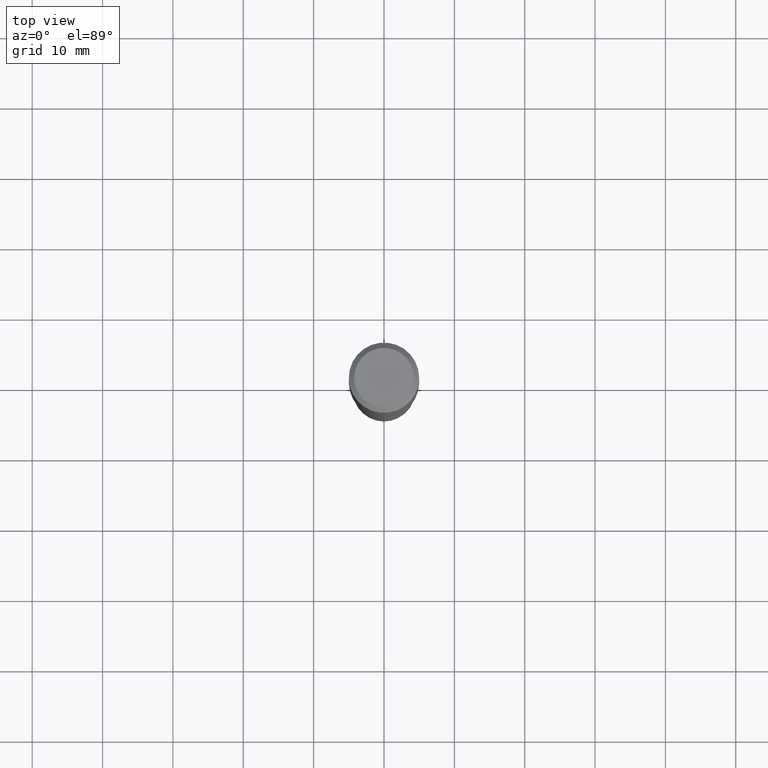
[diagram: clean part render]
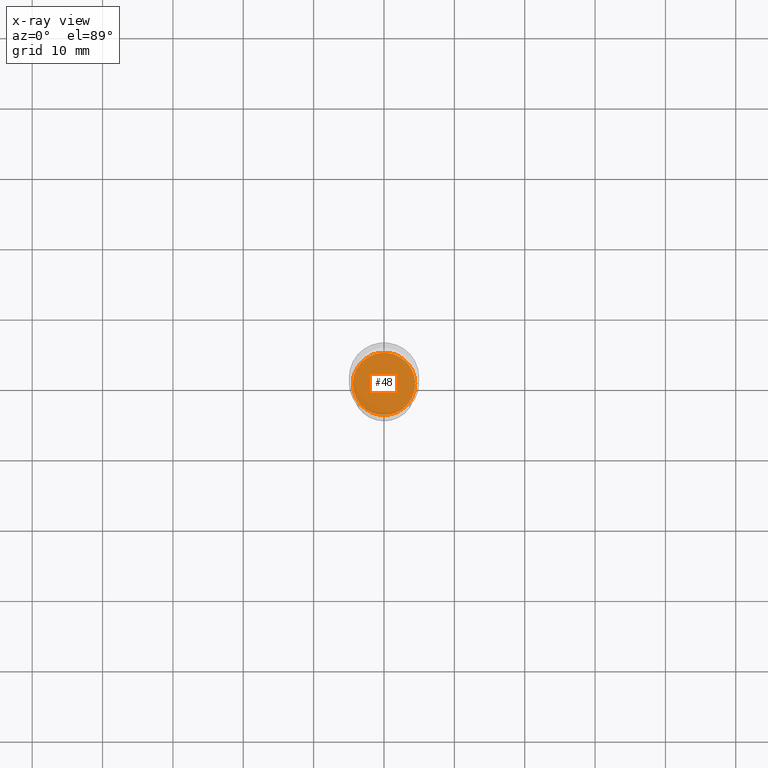
[diagram: x-ray — body ghosted, one internal face saturated and labeled with its STEP entity id]
A machine part, top view, then the same camera in x-ray: the body is ghosted and one INTERNAL B-rep face — a face not visible from any outside direction — is saturated and labeled: STEP entity #48.
In plain terms, the highlighted planar face has unit normal (-0, 0, 1).
Its self-contained STEP definition (entity closure, byte-faithful):
#46 = DIRECTION ( 'NONE',  ( -2.438088387897960049E-29, 3.491481338843145188E-15, 1.000000000000000000 ) ) ;
#48 = ADVANCED_FACE ( 'NONE', ( #276 ), #345, .F. ) ;
#70 = CARTESIAN_POINT ( 'NONE',  ( 0.1746999999999999942, -8.216503034699569763E-15, -2.003899999999999793 ) ) ;
#88 = ORIENTED_EDGE ( 'NONE', *, *, #360, .F. ) ;
#120 = ORIENTED_EDGE ( 'NONE', *, *, #492, .F. ) ;
#155 = DIRECTION ( 'NONE',  ( 1.000000000000000000, -6.982962677686265922E-15, 4.876176775795935793E-29 ) ) ;
#166 = DIRECTION ( 'NONE',  ( -2.445468806185136597E-29, 3.491481338843145583E-15, 1.000000000000000000 ) ) ;
#173 = CIRCLE ( 'NONE', #405, 0.1746999999999999942 ) ;
#199 = CARTESIAN_POINT ( 'NONE',  ( 4.900474940714395139E-29, -6.996579454907778893E-15, -2.003899999999999793 ) ) ;
#224 = CARTESIAN_POINT ( 'NONE',  ( 4.900474940714395139E-29, -6.996579454907778893E-15, -2.003899999999999793 ) ) ;
#243 = CIRCLE ( 'NONE', #430, 0.1746999999999999942 ) ;
#262 = DIRECTION ( 'NONE',  ( -2.445468806185136597E-29, 3.491481338843145583E-15, 1.000000000000000000 ) ) ;
#276 = FACE_OUTER_BOUND ( 'NONE', #455, .T. ) ;
#326 = DIRECTION ( 'NONE',  ( 1.000000000000000000, -6.982962677686265922E-15, 0.000000000000000000 ) ) ;
#345 = PLANE ( 'NONE',  #351 ) ;
#351 = AXIS2_PLACEMENT_3D ( 'NONE', #199, #46, #155 ) ;
#353 = CARTESIAN_POINT ( 'NONE',  ( -0.1746999999999999942, -5.752612068360773695E-15, -2.003899999999999793 ) ) ;
#360 = EDGE_CURVE ( 'NONE', #465, #387, #243, .T. ) ;
#366 = CARTESIAN_POINT ( 'NONE',  ( 4.900474940714395139E-29, -6.996579454907778893E-15, -2.003899999999999793 ) ) ;
#378 = DIRECTION ( 'NONE',  ( 1.000000000000000000, -6.982962677686265922E-15, 0.000000000000000000 ) ) ;
#387 = VERTEX_POINT ( 'NONE', #70 ) ;
#405 = AXIS2_PLACEMENT_3D ( 'NONE', #366, #166, #326 ) ;
#430 = AXIS2_PLACEMENT_3D ( 'NONE', #224, #262, #378 ) ;
#455 = EDGE_LOOP ( 'NONE', ( #120, #88 ) ) ;
#465 = VERTEX_POINT ( 'NONE', #353 ) ;
#492 = EDGE_CURVE ( 'NONE', #387, #465, #173, .T. ) ;